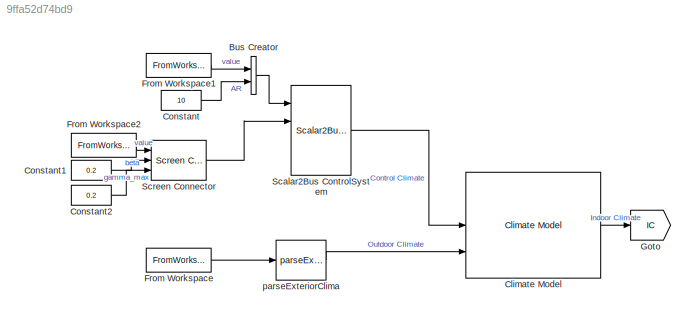
MODEL slx_9ffa52d74bd9
KIND model
CONFIG AbsTol = auto
CONFIG EnableMultiTasking = off
CONFIG FixedStep = auto
CONFIG MaxStep = auto
CONFIG MinStep = auto
CONFIG RelTol = 1e-3
CONFIG SampleTimeConstraint = Unconstrained
CONFIG SolverName = VariableStepAuto
CONFIG StartTime = 0.0
CONFIG StopTime = 8
BLOCK [BusCreator] Bus Creator
  DisplayOption = bar
  InheritFromInputs = on
  Inputs = 2
  Ports = [2, 1]
BLOCK [Reference] Climate Model  REF=HORTISIM/Climate/Models/Climate Model
  Ports = [3, 1]
  SourceBlock = HORTISIM/Climate/Models/Climate Model
  SourceProductName = Horti Simulator
BLOCK [Constant] Constant
  Value = 10
BLOCK [Constant] Constant1
  Value = 0.2
BLOCK [Constant] Constant2
  Value = 0.2
BLOCK [FromWorkspace] From Workspace
  VariableName = climate
BLOCK [FromWorkspace] From Workspace1
  VariableName = windows
BLOCK [FromWorkspace] From Workspace2
  VariableName = screen
BLOCK [Goto] Goto
  GotoTag = IC
BLOCK [Reference] Scalar2Bus ControlSystem  REF=HORTISIM/Other 
Functions/Scalar2Bus 
Control Climate
  Ports = [4, 1]
  SourceBlock = HORTISIM/Other \nFunctions/Scalar2Bus \nControl Climate
  SourceProductName = Horti Simulator
  SourceType = SubSystem
BLOCK [Reference] Screen Connector  REF=HORTISIM/Other 
Functions/Screen
Connector
  Ports = [3, 1]
  SourceBlock = HORTISIM/Other \nFunctions/Screen\nConnector
  SourceProductName = Horti Simulator
  SourceType = SubSystem
BLOCK [Reference] parseExteriorClima  REF=HORTISIM/Other 
Functions/parseExteriorClima
  Ports = [1, 1]
  SourceBlock = HORTISIM/Other \nFunctions/parseExteriorClima
  SourceProductName = Horti Simulator
  SourceType = SubSystem
LINE Bus Creator:1 -> Scalar2Bus ControlSystem:1
LINE Climate Model:1 -> Goto:1
LINE Constant1:1 -> Screen Connector:2
LINE Constant2:1 -> Screen Connector:3
LINE Constant:1 -> Bus Creator:2
LINE From Workspace1:1 -> Bus Creator:1
LINE From Workspace2:1 -> Screen Connector:1
LINE From Workspace:1 -> parseExteriorClima:1
LINE Scalar2Bus ControlSystem:1 -> Climate Model:2
LINE Screen Connector:1 -> Scalar2Bus ControlSystem:2
LINE parseExteriorClima:1 -> Climate Model:3
